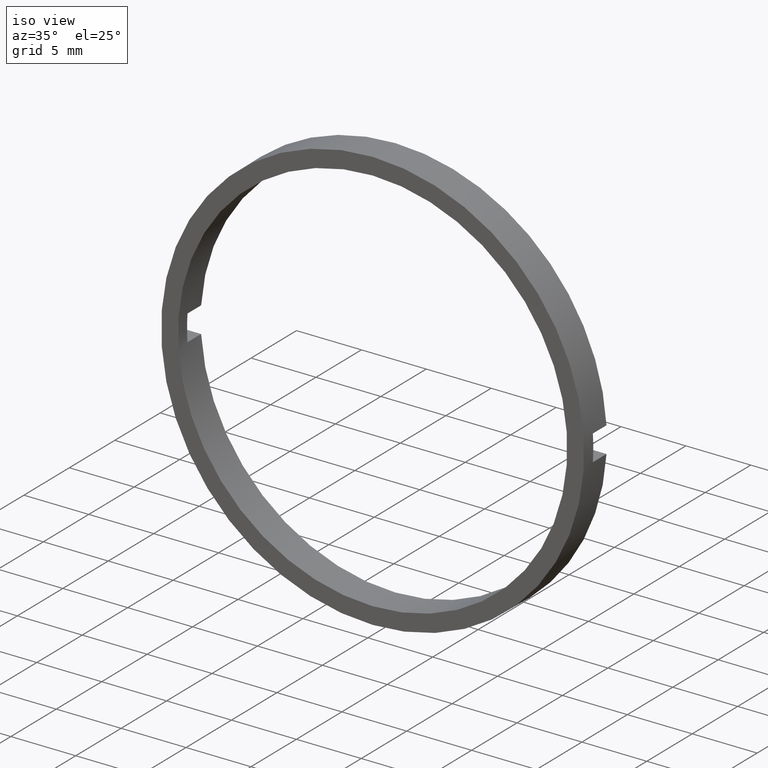
[diagram: clean part render]
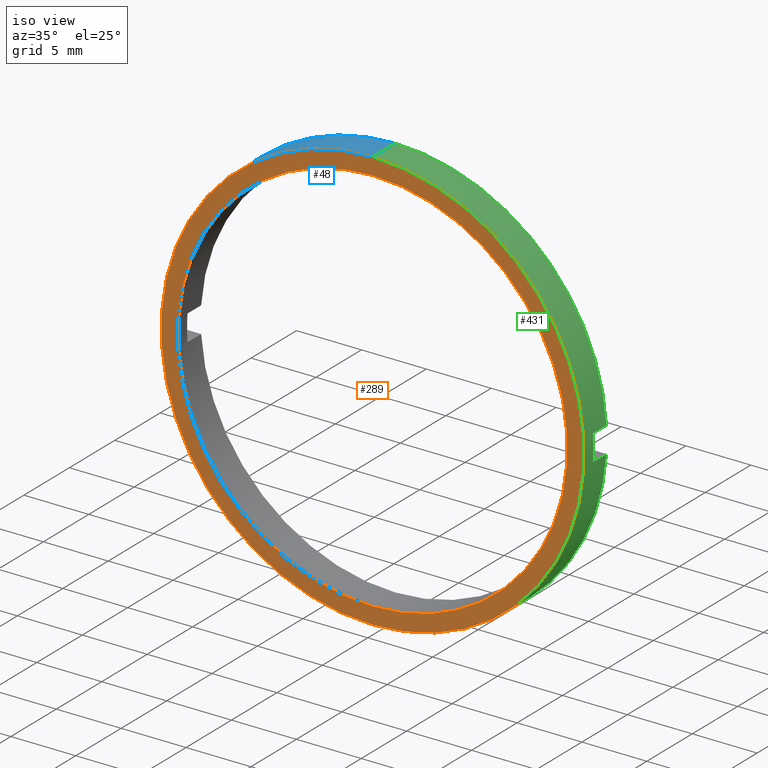
[diagram: same view with three faces highlighted in distinct colors, each labeled with its STEP entity id]
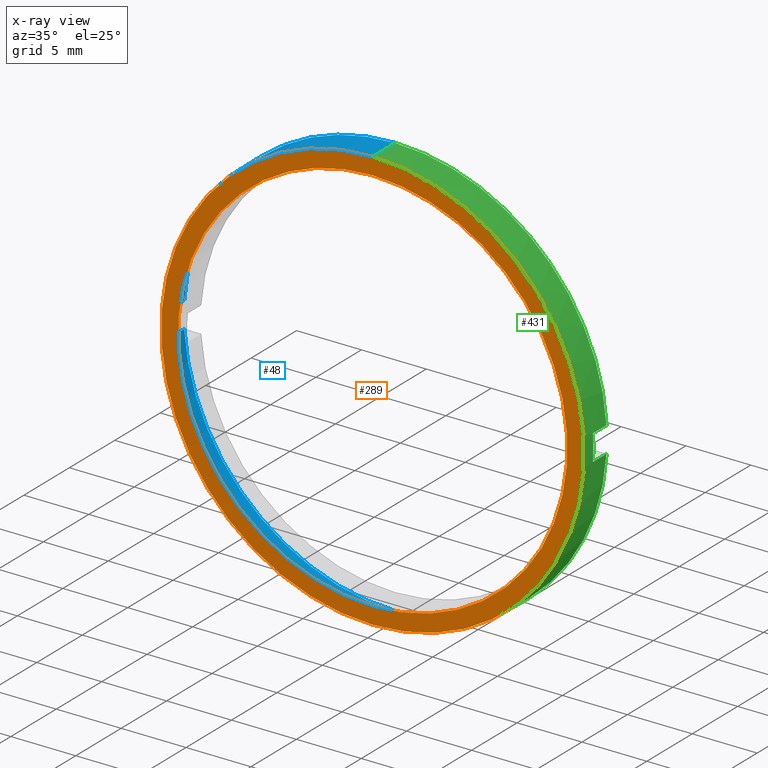
[diagram: x-ray of the same camera — body ghosted, the three highlighted faces saturated]
A machine part, iso view with three faces highlighted in distinct colors.
The next image is the same camera in x-ray (body ghosted, the three faces saturated) — at least one of them is partly hidden behind the body in this view.
Their STEP definitions:

[orange] entity #289 — the highlighted planar face has unit normal (-0, 1, 0).
#19 = EDGE_CURVE ( 'NONE', #285, #100, #385, .T. ) ;
#21 = CARTESIAN_POINT ( 'NONE',  ( 15.00000000000000700, -4.464249787179429800, 0.0000000000000000000 ) ) ;
#22 = DIRECTION ( 'NONE',  ( -0.0000000000000000000, 1.000000000000000000, -0.0000000000000000000 ) ) ;
#24 = AXIS2_PLACEMENT_3D ( 'NONE', #21, #437, #253 ) ;
#34 = EDGE_LOOP ( 'NONE', ( #328, #186 ) ) ;
#76 = AXIS2_PLACEMENT_3D ( 'NONE', #336, #102, #141 ) ;
#88 = ORIENTED_EDGE ( 'NONE', *, *, #415, .F. ) ;
#100 = VERTEX_POINT ( 'NONE', #430 ) ;
#102 = DIRECTION ( 'NONE',  ( -0.0000000000000000000, 1.000000000000000000, -0.0000000000000000000 ) ) ;
#116 = DIRECTION ( 'NONE',  ( 0.0000000000000000000, 0.0000000000000000000, 1.000000000000000000 ) ) ;
#141 = DIRECTION ( 'NONE',  ( 0.0000000000000000000, 0.0000000000000000000, 1.000000000000000000 ) ) ;
#146 = FACE_BOUND ( 'NONE', #34, .T. ) ;
#174 = CIRCLE ( 'NONE', #461, 16.30000000000000800 ) ;
#175 = CARTESIAN_POINT ( 'NONE',  ( 1.996174282610186800E-015, -4.464249787179428900, -16.30000000000000800 ) ) ;
#178 = DIRECTION ( 'NONE',  ( 0.0000000000000000000, 0.0000000000000000000, 1.000000000000000000 ) ) ;
#180 = EDGE_CURVE ( 'NONE', #100, #285, #419, .T. ) ;
#186 = ORIENTED_EDGE ( 'NONE', *, *, #180, .T. ) ;
#190 = DIRECTION ( 'NONE',  ( -0.0000000000000000000, 1.000000000000000000, -0.0000000000000000000 ) ) ;
#220 = PLANE ( 'NONE',  #24 ) ;
#222 = DIRECTION ( 'NONE',  ( 0.0000000000000000000, 0.0000000000000000000, 1.000000000000000000 ) ) ;
#253 = DIRECTION ( 'NONE',  ( 0.0000000000000000000, 0.0000000000000000000, 1.000000000000000000 ) ) ;
#262 = EDGE_LOOP ( 'NONE', ( #88, #263 ) ) ;
#263 = ORIENTED_EDGE ( 'NONE', *, *, #399, .F. ) ;
#271 = AXIS2_PLACEMENT_3D ( 'NONE', #375, #22, #178 ) ;
#285 = VERTEX_POINT ( 'NONE', #441 ) ;
#289 = ADVANCED_FACE ( 'NONE', ( #295, #146 ), #220, .F. ) ;
#295 = FACE_OUTER_BOUND ( 'NONE', #262, .T. ) ;
#303 = VERTEX_POINT ( 'NONE', #175 ) ;
#305 = CARTESIAN_POINT ( 'NONE',  ( 0.0000000000000000000, -4.464249787179428900, 16.30000000000000800 ) ) ;
#328 = ORIENTED_EDGE ( 'NONE', *, *, #19, .T. ) ;
#335 = CARTESIAN_POINT ( 'NONE',  ( 0.0000000000000000000, -4.464249787179428900, 0.0000000000000000000 ) ) ;
#336 = CARTESIAN_POINT ( 'NONE',  ( 0.0000000000000000000, -4.464249787179428900, 0.0000000000000000000 ) ) ;
#353 = DIRECTION ( 'NONE',  ( -0.0000000000000000000, 1.000000000000000000, -0.0000000000000000000 ) ) ;
#375 = CARTESIAN_POINT ( 'NONE',  ( 0.0000000000000000000, -4.464249787179428900, 0.0000000000000000000 ) ) ;
#385 = CIRCLE ( 'NONE', #471, 15.00000000000000700 ) ;
#399 = EDGE_CURVE ( 'NONE', #303, #423, #174, .T. ) ;
#403 = CIRCLE ( 'NONE', #76, 16.30000000000000800 ) ;
#415 = EDGE_CURVE ( 'NONE', #423, #303, #403, .T. ) ;
#419 = CIRCLE ( 'NONE', #271, 15.00000000000000700 ) ;
#423 = VERTEX_POINT ( 'NONE', #305 ) ;
#430 = CARTESIAN_POINT ( 'NONE',  ( 1.836970198721030800E-015, -4.464249787179428900, -15.00000000000000700 ) ) ;
#437 = DIRECTION ( 'NONE',  ( -0.0000000000000000000, 1.000000000000000000, 0.0000000000000000000 ) ) ;
#441 = CARTESIAN_POINT ( 'NONE',  ( 0.0000000000000000000, -4.464249787179428900, 15.00000000000000700 ) ) ;
#461 = AXIS2_PLACEMENT_3D ( 'NONE', #335, #190, #222 ) ;
#467 = CARTESIAN_POINT ( 'NONE',  ( 0.0000000000000000000, -4.464249787179428900, 0.0000000000000000000 ) ) ;
#471 = AXIS2_PLACEMENT_3D ( 'NONE', #467, #353, #116 ) ;

[blue] entity #48 — the highlighted cylindrical surface (partial cylindrical patch) has radius 16.3 mm, axis along (-0, 1, -0).
#11 = ORIENTED_EDGE ( 'NONE', *, *, #231, .F. ) ;
#12 = CARTESIAN_POINT ( 'NONE',  ( 0.0000000000000000000, -1.964249787179434000, 0.0000000000000000000 ) ) ;
#14 = CIRCLE ( 'NONE', #246, 16.30000000000000800 ) ;
#15 = DIRECTION ( 'NONE',  ( 0.0000000000000000000, -1.000000000000000000, 0.0000000000000000000 ) ) ;
#23 = LINE ( 'NONE', #123, #301 ) ;
#28 = ORIENTED_EDGE ( 'NONE', *, *, #399, .T. ) ;
#31 = CARTESIAN_POINT ( 'NONE',  ( -16.26929623554750400, -3.464249787179428400, 0.9999999999999995600 ) ) ;
#48 = ADVANCED_FACE ( 'NONE', ( #341 ), #257, .T. ) ;
#53 = EDGE_CURVE ( 'NONE', #65, #143, #23, .T. ) ;
#65 = VERTEX_POINT ( 'NONE', #210 ) ;
#80 = EDGE_CURVE ( 'NONE', #279, #143, #460, .T. ) ;
#92 = DIRECTION ( 'NONE',  ( -0.0000000000000000000, 1.000000000000000000, -0.0000000000000000000 ) ) ;
#95 = ORIENTED_EDGE ( 'NONE', *, *, #254, .F. ) ;
#103 = VECTOR ( 'NONE', #330, 1000.000000000000000 ) ;
#111 = CARTESIAN_POINT ( 'NONE',  ( 0.0000000000000000000, 56.26084262701361600, 16.30000000000000800 ) ) ;
#123 = CARTESIAN_POINT ( 'NONE',  ( -16.26929623554750700, 56.26084262701361600, -1.000000000000000000 ) ) ;
#143 = VERTEX_POINT ( 'NONE', #324 ) ;
#168 = DIRECTION ( 'NONE',  ( 0.0000000000000000000, 0.0000000000000000000, 1.000000000000000000 ) ) ;
#174 = CIRCLE ( 'NONE', #461, 16.30000000000000800 ) ;
#175 = CARTESIAN_POINT ( 'NONE',  ( 1.996174282610186800E-015, -4.464249787179428900, -16.30000000000000800 ) ) ;
#181 = CARTESIAN_POINT ( 'NONE',  ( 1.996174282610186800E-015, -1.964249787179434000, -16.30000000000000800 ) ) ;
#190 = DIRECTION ( 'NONE',  ( -0.0000000000000000000, 1.000000000000000000, -0.0000000000000000000 ) ) ;
#198 = AXIS2_PLACEMENT_3D ( 'NONE', #503, #272, #418 ) ;
#201 = VERTEX_POINT ( 'NONE', #218 ) ;
#206 = DIRECTION ( 'NONE',  ( 0.0000000000000000000, 0.0000000000000000000, 1.000000000000000000 ) ) ;
#210 = CARTESIAN_POINT ( 'NONE',  ( -16.26929623554750400, -3.464249787179428400, -0.9999999999999995600 ) ) ;
#212 = CARTESIAN_POINT ( 'NONE',  ( -16.26929623554751100, -1.964249787179430900, 1.000000000000000000 ) ) ;
#213 = CARTESIAN_POINT ( 'NONE',  ( 0.0000000000000000000, -1.964249787179434000, 0.0000000000000000000 ) ) ;
#214 = EDGE_LOOP ( 'NONE', ( #11, #28, #292, #95, #243, #483, #261, #376 ) ) ;
#218 = CARTESIAN_POINT ( 'NONE',  ( 0.0000000000000000000, -1.964249787179434000, 16.30000000000000800 ) ) ;
#222 = DIRECTION ( 'NONE',  ( 0.0000000000000000000, 0.0000000000000000000, 1.000000000000000000 ) ) ;
#228 = VERTEX_POINT ( 'NONE', #212 ) ;
#231 = EDGE_CURVE ( 'NONE', #303, #279, #469, .T. ) ;
#243 = ORIENTED_EDGE ( 'NONE', *, *, #266, .T. ) ;
#245 = DIRECTION ( 'NONE',  ( -0.0000000000000000000, 1.000000000000000000, -0.0000000000000000000 ) ) ;
#246 = AXIS2_PLACEMENT_3D ( 'NONE', #213, #333, #329 ) ;
#247 = CARTESIAN_POINT ( 'NONE',  ( 0.0000000000000000000, 56.26084262701361600, 0.0000000000000000000 ) ) ;
#254 = EDGE_CURVE ( 'NONE', #228, #201, #14, .T. ) ;
#257 = CYLINDRICAL_SURFACE ( 'NONE', #321, 16.30000000000000800 ) ;
#261 = ORIENTED_EDGE ( 'NONE', *, *, #53, .T. ) ;
#266 = EDGE_CURVE ( 'NONE', #228, #405, #318, .T. ) ;
#269 = VECTOR ( 'NONE', #15, 1000.000000000000000 ) ;
#272 = DIRECTION ( 'NONE',  ( 0.0000000000000000000, 1.000000000000000000, 0.0000000000000000000 ) ) ;
#279 = VERTEX_POINT ( 'NONE', #181 ) ;
#292 = ORIENTED_EDGE ( 'NONE', *, *, #470, .T. ) ;
#301 = VECTOR ( 'NONE', #406, 1000.000000000000000 ) ;
#303 = VERTEX_POINT ( 'NONE', #175 ) ;
#305 = CARTESIAN_POINT ( 'NONE',  ( 0.0000000000000000000, -4.464249787179428900, 16.30000000000000800 ) ) ;
#316 = DIRECTION ( 'NONE',  ( -0.0000000000000000000, 1.000000000000000000, -0.0000000000000000000 ) ) ;
#318 = LINE ( 'NONE', #484, #269 ) ;
#321 = AXIS2_PLACEMENT_3D ( 'NONE', #247, #245, #168 ) ;
#324 = CARTESIAN_POINT ( 'NONE',  ( -16.26929623554751100, -1.964249787179430900, -1.000000000000000000 ) ) ;
#329 = DIRECTION ( 'NONE',  ( 0.0000000000000000000, 0.0000000000000000000, 1.000000000000000000 ) ) ;
#330 = DIRECTION ( 'NONE',  ( -0.0000000000000000000, 1.000000000000000000, -0.0000000000000000000 ) ) ;
#333 = DIRECTION ( 'NONE',  ( -0.0000000000000000000, 1.000000000000000000, -0.0000000000000000000 ) ) ;
#335 = CARTESIAN_POINT ( 'NONE',  ( 0.0000000000000000000, -4.464249787179428900, 0.0000000000000000000 ) ) ;
#341 = FACE_OUTER_BOUND ( 'NONE', #214, .T. ) ;
#361 = CIRCLE ( 'NONE', #198, 16.30000000000000800 ) ;
#373 = AXIS2_PLACEMENT_3D ( 'NONE', #12, #92, #206 ) ;
#376 = ORIENTED_EDGE ( 'NONE', *, *, #80, .F. ) ;
#394 = VECTOR ( 'NONE', #316, 1000.000000000000000 ) ;
#399 = EDGE_CURVE ( 'NONE', #303, #423, #174, .T. ) ;
#405 = VERTEX_POINT ( 'NONE', #31 ) ;
#406 = DIRECTION ( 'NONE',  ( -0.0000000000000000000, 1.000000000000000000, -0.0000000000000000000 ) ) ;
#418 = DIRECTION ( 'NONE',  ( 0.0000000000000000000, 0.0000000000000000000, 1.000000000000000000 ) ) ;
#423 = VERTEX_POINT ( 'NONE', #305 ) ;
#438 = EDGE_CURVE ( 'NONE', #65, #405, #361, .T. ) ;
#460 = CIRCLE ( 'NONE', #373, 16.30000000000000800 ) ;
#461 = AXIS2_PLACEMENT_3D ( 'NONE', #335, #190, #222 ) ;
#469 = LINE ( 'NONE', #486, #103 ) ;
#470 = EDGE_CURVE ( 'NONE', #423, #201, #492, .T. ) ;
#483 = ORIENTED_EDGE ( 'NONE', *, *, #438, .F. ) ;
#484 = CARTESIAN_POINT ( 'NONE',  ( -16.26929623554750700, 56.26084262701361600, 1.000000000000000000 ) ) ;
#486 = CARTESIAN_POINT ( 'NONE',  ( 1.996174282610186800E-015, 56.26084262701361600, -16.30000000000000800 ) ) ;
#492 = LINE ( 'NONE', #111, #394 ) ;
#503 = CARTESIAN_POINT ( 'NONE',  ( 0.0000000000000000000, -3.464249787179428400, 0.0000000000000000000 ) ) ;

[green] entity #431 — the highlighted cylindrical surface (partial cylindrical patch) has radius 16.3 mm, axis along (-0, 1, -0).
#1 = ORIENTED_EDGE ( 'NONE', *, *, #499, .F. ) ;
#50 = ORIENTED_EDGE ( 'NONE', *, *, #231, .T. ) ;
#51 = AXIS2_PLACEMENT_3D ( 'NONE', #69, #62, #457 ) ;
#62 = DIRECTION ( 'NONE',  ( -0.0000000000000000000, 1.000000000000000000, -0.0000000000000000000 ) ) ;
#67 = DIRECTION ( 'NONE',  ( 0.0000000000000000000, 0.0000000000000000000, 1.000000000000000000 ) ) ;
#69 = CARTESIAN_POINT ( 'NONE',  ( 0.0000000000000000000, 56.26084262701361600, 0.0000000000000000000 ) ) ;
#72 = VECTOR ( 'NONE', #98, 1000.000000000000000 ) ;
#75 = ORIENTED_EDGE ( 'NONE', *, *, #286, .T. ) ;
#76 = AXIS2_PLACEMENT_3D ( 'NONE', #336, #102, #141 ) ;
#97 = CARTESIAN_POINT ( 'NONE',  ( 16.26929623554750400, -3.464249787179428400, -0.9999999999999995600 ) ) ;
#98 = DIRECTION ( 'NONE',  ( 0.0000000000000000000, -1.000000000000000000, 0.0000000000000000000 ) ) ;
#99 = CARTESIAN_POINT ( 'NONE',  ( 0.0000000000000000000, -1.964249787179434000, 0.0000000000000000000 ) ) ;
#102 = DIRECTION ( 'NONE',  ( -0.0000000000000000000, 1.000000000000000000, -0.0000000000000000000 ) ) ;
#103 = VECTOR ( 'NONE', #330, 1000.000000000000000 ) ;
#111 = CARTESIAN_POINT ( 'NONE',  ( 0.0000000000000000000, 56.26084262701361600, 16.30000000000000800 ) ) ;
#128 = ORIENTED_EDGE ( 'NONE', *, *, #470, .F. ) ;
#133 = DIRECTION ( 'NONE',  ( -0.0000000000000000000, 1.000000000000000000, -0.0000000000000000000 ) ) ;
#136 = EDGE_LOOP ( 'NONE', ( #171, #50, #160, #326, #1, #75, #173, #128 ) ) ;
#140 = FACE_OUTER_BOUND ( 'NONE', #136, .T. ) ;
#141 = DIRECTION ( 'NONE',  ( 0.0000000000000000000, 0.0000000000000000000, 1.000000000000000000 ) ) ;
#153 = CIRCLE ( 'NONE', #480, 16.30000000000000800 ) ;
#160 = ORIENTED_EDGE ( 'NONE', *, *, #442, .F. ) ;
#163 = LINE ( 'NONE', #489, #497 ) ;
#169 = CIRCLE ( 'NONE', #277, 16.30000000000000800 ) ;
#171 = ORIENTED_EDGE ( 'NONE', *, *, #415, .T. ) ;
#173 = ORIENTED_EDGE ( 'NONE', *, *, #176, .F. ) ;
#175 = CARTESIAN_POINT ( 'NONE',  ( 1.996174282610186800E-015, -4.464249787179428900, -16.30000000000000800 ) ) ;
#176 = EDGE_CURVE ( 'NONE', #201, #494, #411, .T. ) ;
#177 = VERTEX_POINT ( 'NONE', #97 ) ;
#181 = CARTESIAN_POINT ( 'NONE',  ( 1.996174282610186800E-015, -1.964249787179434000, -16.30000000000000800 ) ) ;
#182 = CARTESIAN_POINT ( 'NONE',  ( 16.26929623554749300, -1.964249787179430900, 1.000000000000000000 ) ) ;
#191 = EDGE_CURVE ( 'NONE', #506, #177, #488, .T. ) ;
#192 = CARTESIAN_POINT ( 'NONE',  ( 0.0000000000000000000, -3.464249787179428400, 0.0000000000000000000 ) ) ;
#201 = VERTEX_POINT ( 'NONE', #218 ) ;
#218 = CARTESIAN_POINT ( 'NONE',  ( 0.0000000000000000000, -1.964249787179434000, 16.30000000000000800 ) ) ;
#231 = EDGE_CURVE ( 'NONE', #303, #279, #469, .T. ) ;
#233 = CARTESIAN_POINT ( 'NONE',  ( 16.26929623554749300, -1.964249787179430900, -1.000000000000000000 ) ) ;
#252 = DIRECTION ( 'NONE',  ( 0.0000000000000000000, 0.0000000000000000000, 1.000000000000000000 ) ) ;
#255 = CARTESIAN_POINT ( 'NONE',  ( 16.26929623554750400, -3.464249787179428400, 0.9999999999999995600 ) ) ;
#265 = VERTEX_POINT ( 'NONE', #255 ) ;
#277 = AXIS2_PLACEMENT_3D ( 'NONE', #192, #456, #67 ) ;
#279 = VERTEX_POINT ( 'NONE', #181 ) ;
#286 = EDGE_CURVE ( 'NONE', #265, #494, #163, .T. ) ;
#300 = DIRECTION ( 'NONE',  ( -0.0000000000000000000, 1.000000000000000000, -0.0000000000000000000 ) ) ;
#303 = VERTEX_POINT ( 'NONE', #175 ) ;
#305 = CARTESIAN_POINT ( 'NONE',  ( 0.0000000000000000000, -4.464249787179428900, 16.30000000000000800 ) ) ;
#310 = DIRECTION ( 'NONE',  ( 0.0000000000000000000, 0.0000000000000000000, 1.000000000000000000 ) ) ;
#316 = DIRECTION ( 'NONE',  ( -0.0000000000000000000, 1.000000000000000000, -0.0000000000000000000 ) ) ;
#326 = ORIENTED_EDGE ( 'NONE', *, *, #191, .T. ) ;
#330 = DIRECTION ( 'NONE',  ( -0.0000000000000000000, 1.000000000000000000, -0.0000000000000000000 ) ) ;
#332 = CARTESIAN_POINT ( 'NONE',  ( 16.26929623554750700, 56.26084262701361600, -1.000000000000000000 ) ) ;
#336 = CARTESIAN_POINT ( 'NONE',  ( 0.0000000000000000000, -4.464249787179428900, 0.0000000000000000000 ) ) ;
#386 = AXIS2_PLACEMENT_3D ( 'NONE', #99, #300, #252 ) ;
#393 = DIRECTION ( 'NONE',  ( -0.0000000000000000000, 1.000000000000000000, -0.0000000000000000000 ) ) ;
#394 = VECTOR ( 'NONE', #316, 1000.000000000000000 ) ;
#403 = CIRCLE ( 'NONE', #76, 16.30000000000000800 ) ;
#411 = CIRCLE ( 'NONE', #386, 16.30000000000000800 ) ;
#415 = EDGE_CURVE ( 'NONE', #423, #303, #403, .T. ) ;
#423 = VERTEX_POINT ( 'NONE', #305 ) ;
#431 = ADVANCED_FACE ( 'NONE', ( #140 ), #463, .T. ) ;
#442 = EDGE_CURVE ( 'NONE', #506, #279, #153, .T. ) ;
#448 = CARTESIAN_POINT ( 'NONE',  ( 0.0000000000000000000, -1.964249787179434000, 0.0000000000000000000 ) ) ;
#456 = DIRECTION ( 'NONE',  ( 0.0000000000000000000, 1.000000000000000000, 0.0000000000000000000 ) ) ;
#457 = DIRECTION ( 'NONE',  ( 0.0000000000000000000, 0.0000000000000000000, 1.000000000000000000 ) ) ;
#463 = CYLINDRICAL_SURFACE ( 'NONE', #51, 16.30000000000000800 ) ;
#469 = LINE ( 'NONE', #486, #103 ) ;
#470 = EDGE_CURVE ( 'NONE', #423, #201, #492, .T. ) ;
#480 = AXIS2_PLACEMENT_3D ( 'NONE', #448, #393, #310 ) ;
#486 = CARTESIAN_POINT ( 'NONE',  ( 1.996174282610186800E-015, 56.26084262701361600, -16.30000000000000800 ) ) ;
#488 = LINE ( 'NONE', #332, #72 ) ;
#489 = CARTESIAN_POINT ( 'NONE',  ( 16.26929623554750700, 56.26084262701361600, 1.000000000000000000 ) ) ;
#492 = LINE ( 'NONE', #111, #394 ) ;
#494 = VERTEX_POINT ( 'NONE', #182 ) ;
#497 = VECTOR ( 'NONE', #133, 1000.000000000000000 ) ;
#499 = EDGE_CURVE ( 'NONE', #265, #177, #169, .T. ) ;
#506 = VERTEX_POINT ( 'NONE', #233 ) ;